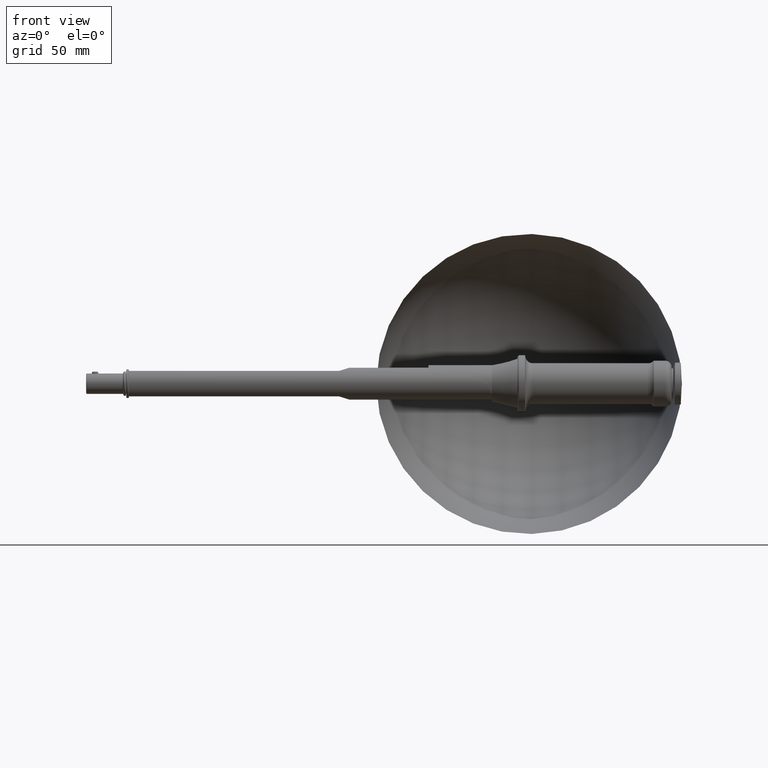
[diagram: clean part render]
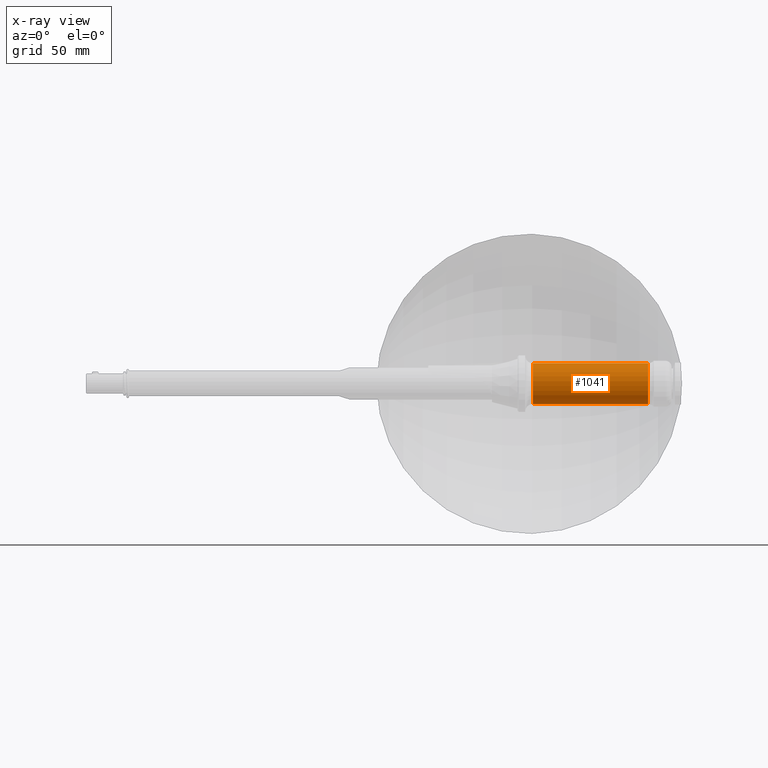
[diagram: x-ray — body ghosted, one internal face saturated and labeled with its STEP entity id]
A machine part, front view, then the same camera in x-ray: the body is ghosted and one INTERNAL B-rep face — a face not visible from any outside direction — is saturated and labeled: STEP entity #1041.
In plain terms, the highlighted cylindrical surface (bore or boss wall) has radius 16 mm, axis along (-1, 0, -0).
Its self-contained STEP definition (entity closure, byte-faithful):
#60=CYLINDRICAL_SURFACE('',#1117,16.);
#86=CIRCLE('',#1115,16.);
#88=CIRCLE('',#1118,16.);
#148=ORIENTED_EDGE('',*,*,#318,.T.);
#149=ORIENTED_EDGE('',*,*,#316,.F.);
#316=EDGE_CURVE('',#400,#400,#86,.T.);
#318=EDGE_CURVE('',#402,#402,#88,.T.);
#400=VERTEX_POINT('',#1488);
#402=VERTEX_POINT('',#1493);
#497=EDGE_LOOP('',(#148));
#498=EDGE_LOOP('',(#149));
#584=FACE_BOUND('',#497,.T.);
#585=FACE_BOUND('',#498,.T.);
#1041=ADVANCED_FACE('',(#584,#585),#60,.T.);
#1115=AXIS2_PLACEMENT_3D('',#1487,#1244,#1245);
#1117=AXIS2_PLACEMENT_3D('',#1491,#1248,#1249);
#1118=AXIS2_PLACEMENT_3D('',#1492,#1250,#1251);
#1244=DIRECTION('',(-1.,0.,-1.75651956300817E-16));
#1245=DIRECTION('',(-1.75651956300817E-16,0.,1.));
#1248=DIRECTION('',(-1.,0.,-1.75651956300817E-16));
#1249=DIRECTION('',(-1.75651956300817E-16,0.,1.));
#1250=DIRECTION('',(-1.,0.,-1.75651956300817E-16));
#1251=DIRECTION('',(-1.75651956300817E-16,0.,1.));
#1487=CARTESIAN_POINT('',(-59.0018752930603,0.,-9.83683895174042E-15));
#1488=CARTESIAN_POINT('',(-59.0018752930603,0.,16.));
#1491=CARTESIAN_POINT('',(50.,0.,9.30955368394328E-15));
#1492=CARTESIAN_POINT('',(31.5278640450004,0.,6.06488686639295E-15));
#1493=CARTESIAN_POINT('',(31.5278640450004,0.,16.));